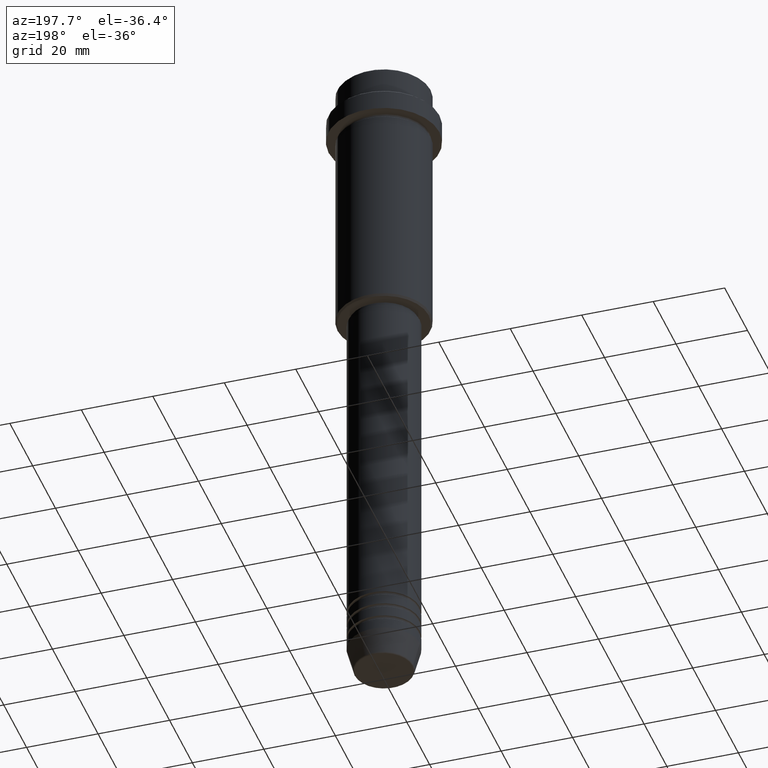
[diagram: clean part render]
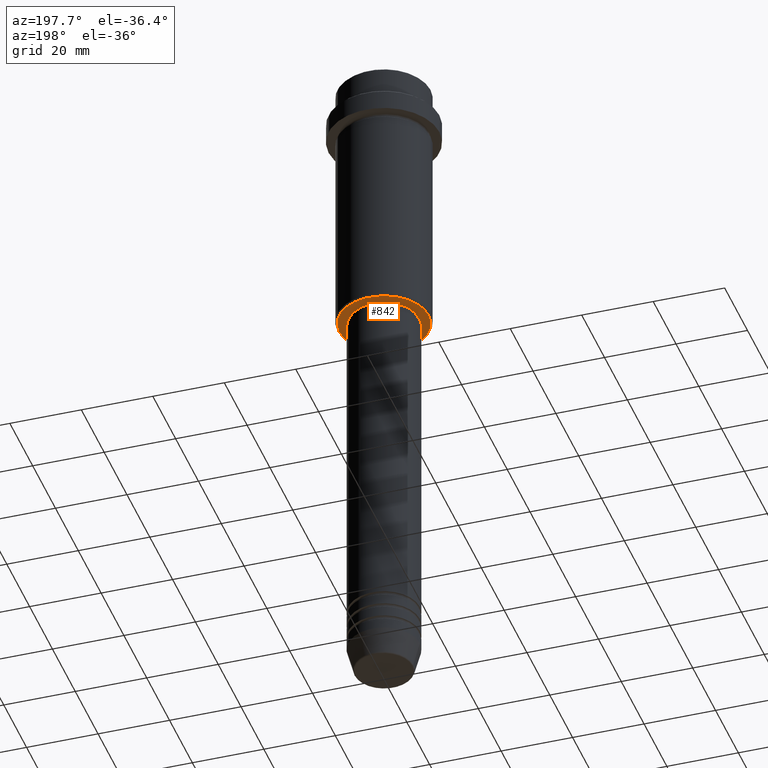
[diagram: same view with one face highlighted and labeled with its STEP entity id]
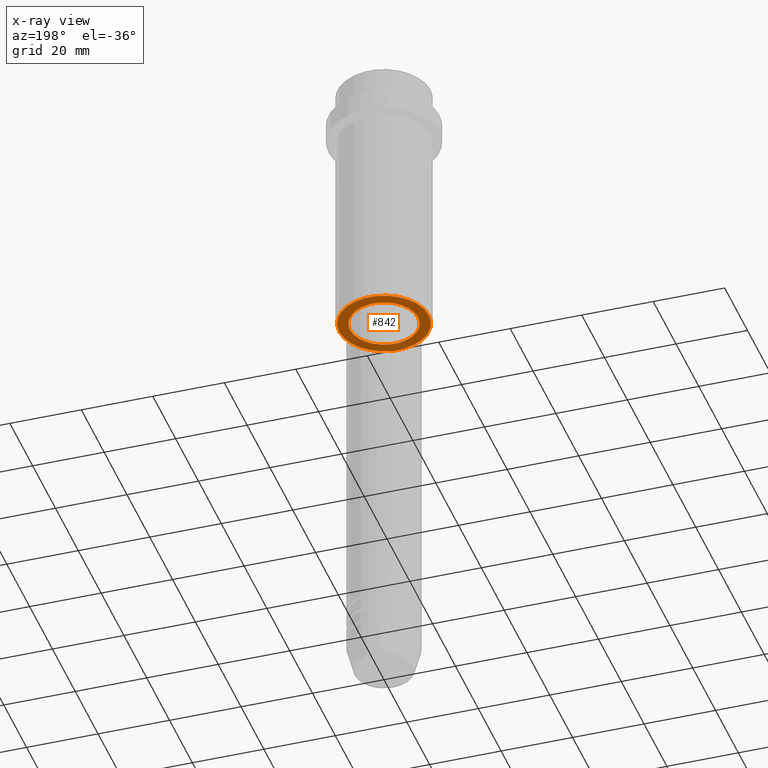
[diagram: x-ray of the same camera — body ghosted, the highlighted face saturated]
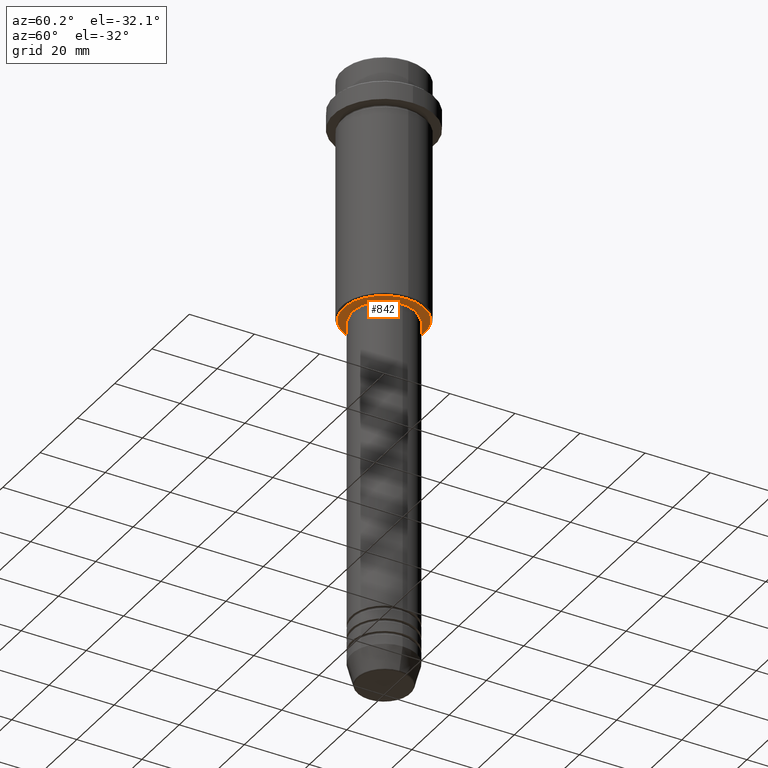
[diagram: same view with one face highlighted and labeled with its STEP entity id]
A machine part, auxiliary view. The second image highlights one B-rep face of the part: STEP entity #842.
The next image is the same camera in x-ray: the body ghosted, the highlighted face saturated — about 20% of this face is hidden behind the body in this view.
A second angle (auxiliary view) of the same face is appended — the face is thin or edge-on in the first view.
In plain terms, the highlighted planar face has unit normal (0, 0, -1).
Its self-contained STEP definition (entity closure, byte-faithful):
#83 = AXIS2_PLACEMENT_3D ( 'NONE', #911, #611, #715 ) ;
#111 = DIRECTION ( 'NONE',  ( 0.000000000000000000, 0.000000000000000000, -1.000000000000000000 ) ) ;
#123 = AXIS2_PLACEMENT_3D ( 'NONE', #1006, #885, #673 ) ;
#174 = AXIS2_PLACEMENT_3D ( 'NONE', #666, #111, #999 ) ;
#188 = ORIENTED_EDGE ( 'NONE', *, *, #860, .T. ) ;
#251 = EDGE_CURVE ( 'NONE', #284, #689, #1030, .T. ) ;
#284 = VERTEX_POINT ( 'NONE', #944 ) ;
#286 = CARTESIAN_POINT ( 'NONE',  ( 12.50000000000001066, 0.000000000000000000, -75.00000000000001421 ) ) ;
#328 = ORIENTED_EDGE ( 'NONE', *, *, #251, .T. ) ;
#341 = PLANE ( 'NONE',  #707 ) ;
#360 = FACE_BOUND ( 'NONE', #1235, .T. ) ;
#377 = DIRECTION ( 'NONE',  ( 0.000000000000000000, 0.000000000000000000, -1.000000000000000000 ) ) ;
#381 = CARTESIAN_POINT ( 'NONE',  ( 9.499999999999996447, 0.000000000000000000, -75.00000000000001421 ) ) ;
#473 = FACE_OUTER_BOUND ( 'NONE', #1089, .T. ) ;
#561 = CARTESIAN_POINT ( 'NONE',  ( 0.000000000000000000, 13.00000000000000000, -75.00000000000001421 ) ) ;
#611 = DIRECTION ( 'NONE',  ( -0.000000000000000000, -0.000000000000000000, 1.000000000000000000 ) ) ;
#640 = ORIENTED_EDGE ( 'NONE', *, *, #811, .T. ) ;
#641 = CIRCLE ( 'NONE', #174, 12.50000000000001066 ) ;
#666 = CARTESIAN_POINT ( 'NONE',  ( 0.000000000000000000, 0.000000000000000000, -75.00000000000001421 ) ) ;
#673 = DIRECTION ( 'NONE',  ( 1.000000000000000000, 0.000000000000000000, 0.000000000000000000 ) ) ;
#689 = VERTEX_POINT ( 'NONE', #286 ) ;
#707 = AXIS2_PLACEMENT_3D ( 'NONE', #561, #1236, #779 ) ;
#712 = DIRECTION ( 'NONE',  ( -1.000000000000000000, 0.000000000000000000, 0.000000000000000000 ) ) ;
#715 = DIRECTION ( 'NONE',  ( 1.000000000000000000, 0.000000000000000000, 0.000000000000000000 ) ) ;
#751 = CIRCLE ( 'NONE', #83, 9.499999999999996447 ) ;
#779 = DIRECTION ( 'NONE',  ( -1.000000000000000000, 0.000000000000000000, -0.000000000000000000 ) ) ;
#811 = EDGE_CURVE ( 'NONE', #1119, #938, #1182, .T. ) ;
#842 = ADVANCED_FACE ( 'NONE', ( #473, #360 ), #341, .T. ) ;
#860 = EDGE_CURVE ( 'NONE', #689, #284, #641, .T. ) ;
#870 = CARTESIAN_POINT ( 'NONE',  ( -9.499999999999996447, 1.163414459189985091E-15, -75.00000000000001421 ) ) ;
#885 = DIRECTION ( 'NONE',  ( -0.000000000000000000, -0.000000000000000000, 1.000000000000000000 ) ) ;
#911 = CARTESIAN_POINT ( 'NONE',  ( 0.000000000000000000, 0.000000000000000000, -75.00000000000001421 ) ) ;
#938 = VERTEX_POINT ( 'NONE', #381 ) ;
#944 = CARTESIAN_POINT ( 'NONE',  ( -12.50000000000001066, 1.561424668912876097E-15, -75.00000000000001421 ) ) ;
#999 = DIRECTION ( 'NONE',  ( -1.000000000000000000, 0.000000000000000000, 0.000000000000000000 ) ) ;
#1006 = CARTESIAN_POINT ( 'NONE',  ( 0.000000000000000000, 0.000000000000000000, -75.00000000000001421 ) ) ;
#1030 = CIRCLE ( 'NONE', #1180, 12.50000000000001066 ) ;
#1089 = EDGE_LOOP ( 'NONE', ( #188, #328 ) ) ;
#1119 = VERTEX_POINT ( 'NONE', #870 ) ;
#1180 = AXIS2_PLACEMENT_3D ( 'NONE', #1258, #377, #712 ) ;
#1182 = CIRCLE ( 'NONE', #123, 9.499999999999996447 ) ;
#1230 = ORIENTED_EDGE ( 'NONE', *, *, #1340, .T. ) ;
#1235 = EDGE_LOOP ( 'NONE', ( #1230, #640 ) ) ;
#1236 = DIRECTION ( 'NONE',  ( 0.000000000000000000, 0.000000000000000000, -1.000000000000000000 ) ) ;
#1258 = CARTESIAN_POINT ( 'NONE',  ( 0.000000000000000000, 0.000000000000000000, -75.00000000000001421 ) ) ;
#1340 = EDGE_CURVE ( 'NONE', #938, #1119, #751, .T. ) ;